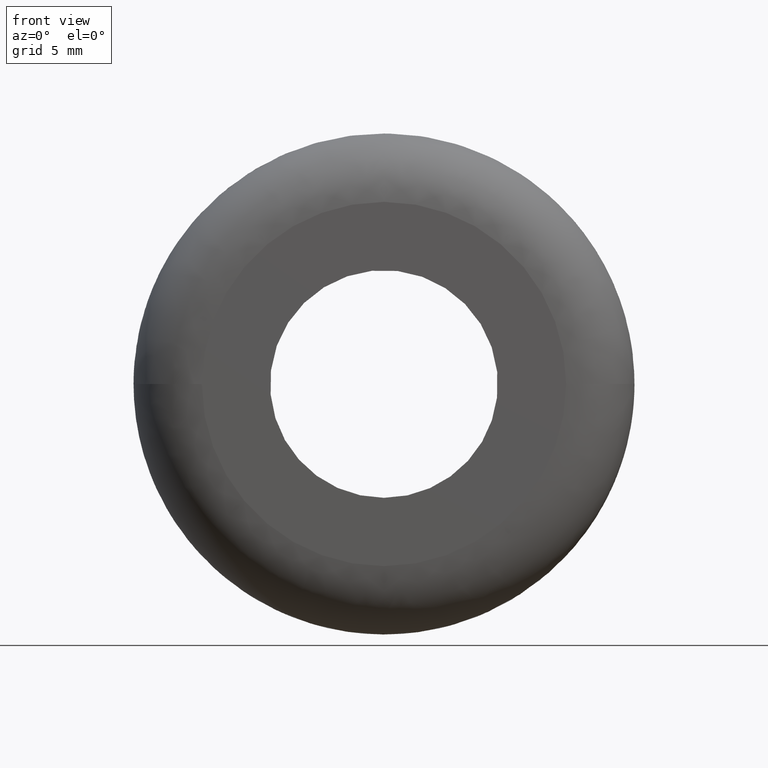
[diagram: clean part render]
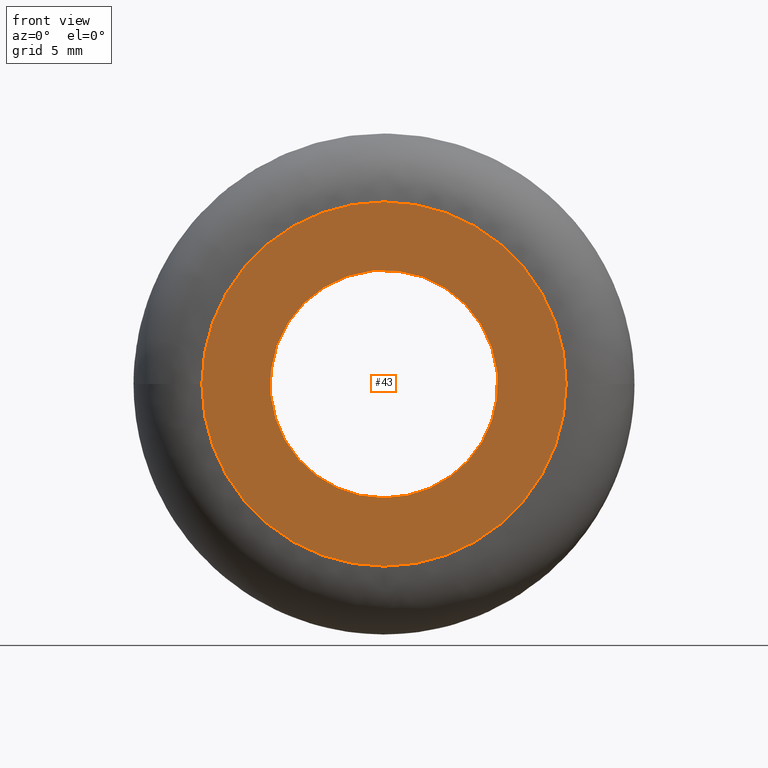
[diagram: same view with one face highlighted and labeled with its STEP entity id]
A machine part, front view. The second image highlights one B-rep face of the part: STEP entity #43.
In plain terms, the highlighted planar face has unit normal (0, 1, 0).
Its self-contained STEP definition (entity closure, byte-faithful):
#43=ADVANCED_FACE('',(#90,#91),#89,.F.);
#89=PLANE('',#241);
#90=FACE_OUTER_BOUND('',#242,.T.);
#91=FACE_BOUND('',#243,.T.);
#238=CARTESIAN_POINT('',(-1.66276877527E+001,-1.12536100000E-015,-1.84000000001E+001));
#239=DIRECTION('',(0.00000000000E+000,1.00000000000E+000,0.00000000000E+000));
#240=DIRECTION('',(0.00000000000E+000,0.00000000000E+000,1.00000000000E+000));
#241=AXIS2_PLACEMENT_3D('',#238,#239,#240);
#242=EDGE_LOOP('',(#406,#407,#408));
#243=EDGE_LOOP('',(#409,#410,#411));
#406=ORIENTED_EDGE('',*,*,#508,.T.);
#407=ORIENTED_EDGE('',*,*,#509,.T.);
#408=ORIENTED_EDGE('',*,*,#510,.T.);
#409=ORIENTED_EDGE('',*,*,#511,.F.);
#410=ORIENTED_EDGE('',*,*,#512,.F.);
#411=ORIENTED_EDGE('',*,*,#513,.F.);
#508=EDGE_CURVE('',#667,#668,#669,.T.);
#509=EDGE_CURVE('',#668,#675,#676,.T.);
#510=EDGE_CURVE('',#675,#667,#682,.T.);
#511=EDGE_CURVE('',#688,#689,#690,.T.);
#512=EDGE_CURVE('',#696,#688,#697,.T.);
#513=EDGE_CURVE('',#689,#696,#703,.T.);
#667=VERTEX_POINT('',#976);
#668=VERTEX_POINT('',#977);
#669=CIRCLE('',#981,8.00000000004E+000);
#675=VERTEX_POINT('',#982);
#676=CIRCLE('',#986,8.00000000004E+000);
#682=CIRCLE('',#990,8.00000000004E+000);
#688=VERTEX_POINT('',#991);
#689=VERTEX_POINT('',#992);
#690=CIRCLE('',#996,4.99999999999E+000);
#696=VERTEX_POINT('',#997);
#697=CIRCLE('',#1001,4.99999999999E+000);
#703=CIRCLE('',#1005,4.99999999999E+000);
#976=CARTESIAN_POINT('',(9.79685159317E-016,1.03522541671E-015,8.00000000008E+000));
#977=CARTESIAN_POINT('',(-8.00000000005E+000,-1.48521291651E-016,-2.87276339003E-014));
#978=CARTESIAN_POINT('',(-7.80175923865E-012,-1.48521291645E-016,3.90958376784E-011));
#979=DIRECTION('',(1.74315279842E-032,-1.00000000000E+000,1.47968338544E-016));
#980=DIRECTION('',(9.75219904836E-013,1.47968338544E-016,1.00000000000E+000));
#981=AXIS2_PLACEMENT_3D('',#978,#979,#980);
#982=CARTESIAN_POINT('',(7.99999995695E+000,-1.48644143316E-016,-8.30256434793E-004));
#983=CARTESIAN_POINT('',(-7.80175923865E-012,-1.48521291645E-016,3.90958376784E-011));
#984=DIRECTION('',(1.74315279842E-032,-1.00000000000E+000,1.47968338544E-016));
#985=DIRECTION('',(9.75219904836E-013,1.47968338544E-016,1.00000000000E+000));
#986=AXIS2_PLACEMENT_3D('',#983,#984,#985);
#987=CARTESIAN_POINT('',(-7.80175923865E-012,-1.48521291645E-016,3.90958376784E-011));
#988=DIRECTION('',(1.74315279842E-032,-1.00000000000E+000,1.47968338544E-016));
#989=DIRECTION('',(9.75219904836E-013,1.47968338544E-016,1.00000000000E+000));
#990=AXIS2_PLACEMENT_3D('',#987,#988,#989);
#991=CARTESIAN_POINT('',(-4.96504784763E+000,-1.50476751101E-015,5.90169357593E-001));
#992=CARTESIAN_POINT('',(-1.77635683940E-015,-6.25743042342E-015,-4.99999999998E+000));
#993=CARTESIAN_POINT('',(4.62296867454E-012,-1.35822492728E-015,1.01727515300E-011));
#994=DIRECTION('',(1.45983442261E-016,-1.00000000000E+000,9.79841099230E-016));
#995=DIRECTION('',(-9.24565979332E-013,-9.79841099230E-016,-1.00000000000E+000));
#996=AXIS2_PLACEMENT_3D('',#993,#994,#995);
#997=CARTESIAN_POINT('',(4.96494555452E+000,-1.21253988949E-015,-5.91029306010E-001));
#998=CARTESIAN_POINT('',(4.62296867454E-012,-1.35822492728E-015,1.01727515300E-011));
#999=DIRECTION('',(1.45983442261E-016,-1.00000000000E+000,9.79841099230E-016));
#1000=DIRECTION('',(-9.24565979332E-013,-9.79841099230E-016,-1.00000000000E+000));
#1001=AXIS2_PLACEMENT_3D('',#998,#999,#1000);
#1002=CARTESIAN_POINT('',(4.62296867454E-012,-1.35822492728E-015,1.01727515300E-011));
#1003=DIRECTION('',(1.45983442261E-016,-1.00000000000E+000,9.79841099230E-016));
#1004=DIRECTION('',(-9.24565979332E-013,-9.79841099230E-016,-1.00000000000E+000));
#1005=AXIS2_PLACEMENT_3D('',#1002,#1003,#1004);